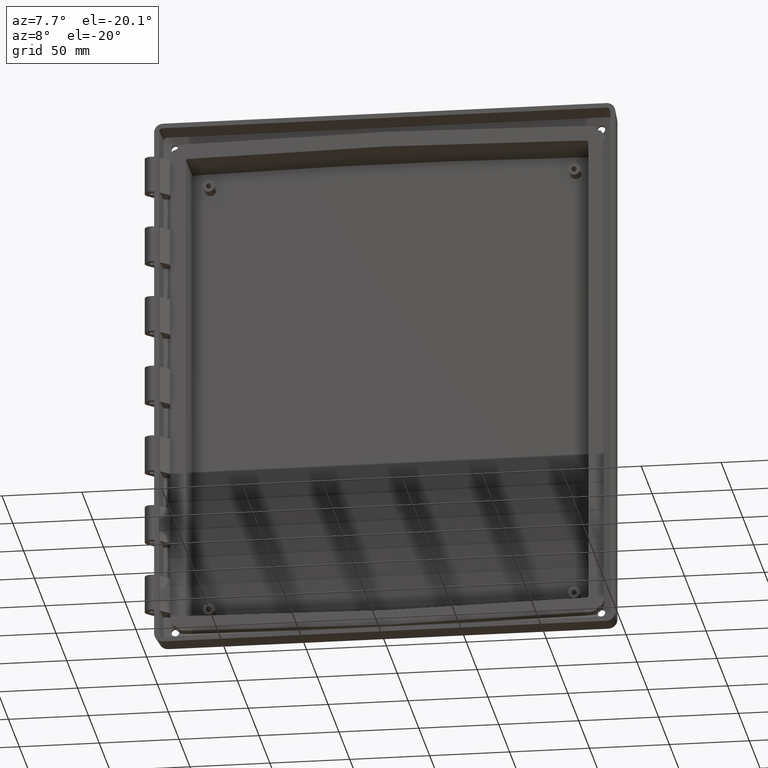
[diagram: clean part render]
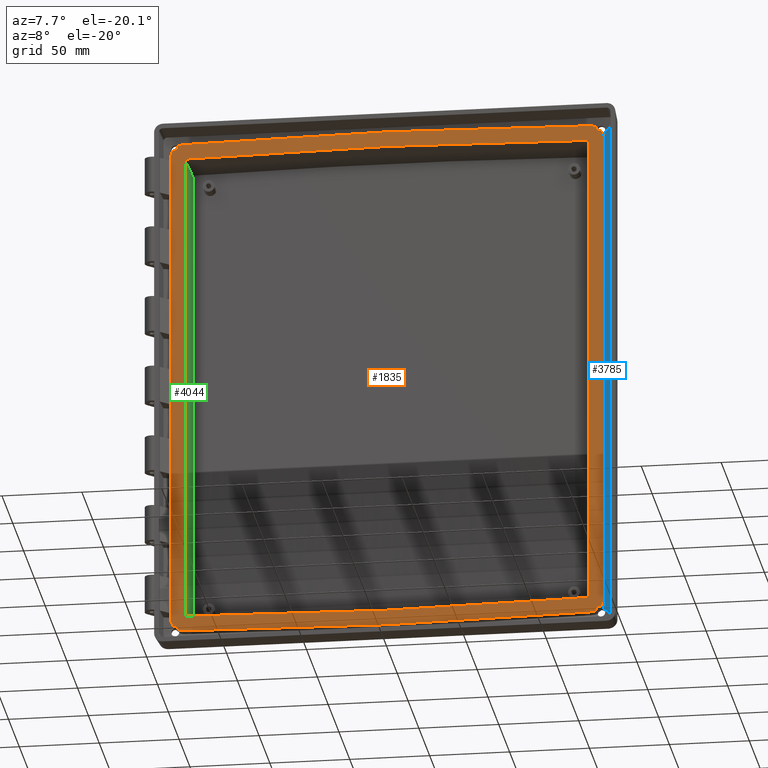
[diagram: same view with three faces highlighted in distinct colors, each labeled with its STEP entity id]
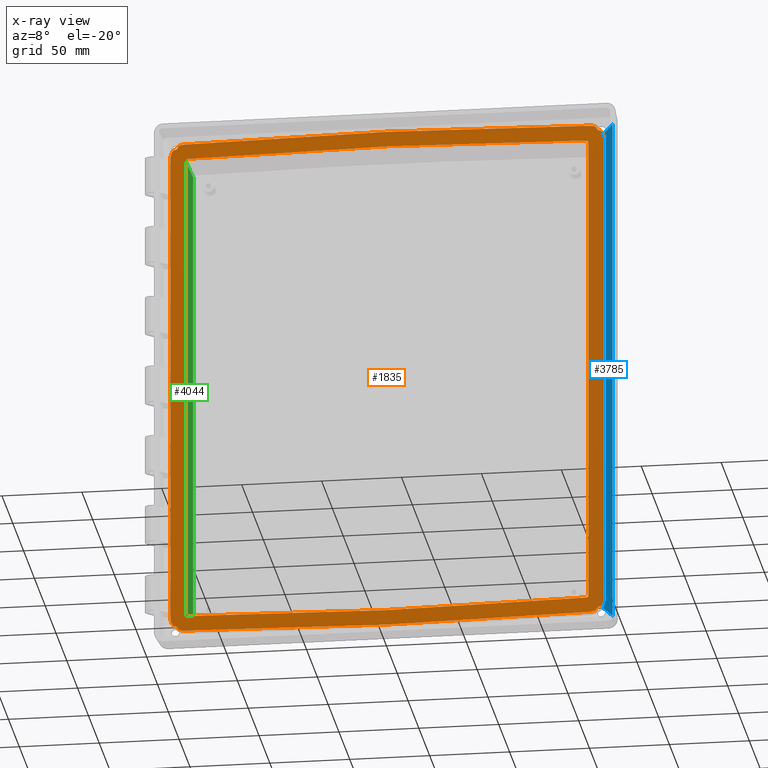
[diagram: x-ray of the same camera — body ghosted, the three highlighted faces saturated]
A machine part, auxiliary view with three faces highlighted in distinct colors.
The next image is the same camera in x-ray (body ghosted, the three faces saturated) — at least one of them is partly hidden behind the body in this view.
Their STEP definitions:

[orange] entity #1835 — the highlighted planar face has unit normal (0, -1, 0).
#88 = VERTEX_POINT ( 'NONE', #4485 ) ;
#89 = EDGE_CURVE ( 'NONE', #100, #88, #4479, .T. ) ;
#100 = VERTEX_POINT ( 'NONE', #4518 ) ;
#108 = VERTEX_POINT ( 'NONE', #4504 ) ;
#1166 = CARTESIAN_POINT ( 'NONE',  ( -135.5658622662900000, 3.000000000000001800, -34.49999999999999300 ) ) ;
#1168 = CARTESIAN_POINT ( 'NONE',  ( -126.9247106076668200, 3.000000000000000000, 160.4911357703596500 ) ) ;
#1235 = DIRECTION ( 'NONE',  ( -3.330669073875503700E-014, 0.0000000000000000000, -1.000000000000000000 ) ) ;
#1236 = DIRECTION ( 'NONE',  ( 0.0000000000000000000, 1.000000000000000000, 0.0000000000000000000 ) ) ;
#1237 = CARTESIAN_POINT ( 'NONE',  ( -133.2692622342644000, 2.999999999999999100, -159.5192622342643700 ) ) ;
#1238 = AXIS2_PLACEMENT_3D ( 'NONE', #1237, #1236, #1235 ) ;
#1239 = CIRCLE ( 'NONE', #1238, 2.499999999999974200 ) ;
#1249 = CARTESIAN_POINT ( 'NONE',  ( -132.5109024625724000, 2.999999999999999100, -157.1370593762610200 ) ) ;
#1503 = EDGE_CURVE ( 'NONE', #1504, #1505, #5092, .T. ) ;
#1504 = VERTEX_POINT ( 'NONE', #5087 ) ;
#1505 = VERTEX_POINT ( 'NONE', #5086 ) ;
#1518 = EDGE_CURVE ( 'NONE', #1505, #1519, #5116, .T. ) ;
#1519 = VERTEX_POINT ( 'NONE', #5112 ) ;
#1666 = EDGE_CURVE ( 'NONE', #1742, #1671, #5433, .T. ) ;
#1671 = VERTEX_POINT ( 'NONE', #5472 ) ;
#1677 = VERTEX_POINT ( 'NONE', #5460 ) ;
#1681 = EDGE_CURVE ( 'NONE', #1727, #1742, #5451, .T. ) ;
#1705 = VERTEX_POINT ( 'NONE', #5522 ) ;
#1707 = EDGE_CURVE ( 'NONE', #1781, #1705, #5520, .T. ) ;
#1712 = EDGE_CURVE ( 'NONE', #1735, #100, #5509, .T. ) ;
#1721 = VERTEX_POINT ( 'NONE', #5551 ) ;
#1727 = VERTEX_POINT ( 'NONE', #5534 ) ;
#1734 = EDGE_CURVE ( 'NONE', #1721, #1727, #5588, .T. ) ;
#1735 = VERTEX_POINT ( 'NONE', #5576 ) ;
#1737 = EDGE_CURVE ( 'NONE', #1671, #1735, #5575, .T. ) ;
#1742 = VERTEX_POINT ( 'NONE', #5613 ) ;
#1749 = EDGE_CURVE ( 'NONE', #1823, #1750, #5610, .T. ) ;
#1750 = VERTEX_POINT ( 'NONE', #5599 ) ;
#1764 = EDGE_CURVE ( 'NONE', #1812, #1765, #5632, .T. ) ;
#1765 = VERTEX_POINT ( 'NONE', #5617 ) ;
#1781 = VERTEX_POINT ( 'NONE', #5700 ) ;
#1787 = EDGE_CURVE ( 'NONE', #1788, #108, #5696, .T. ) ;
#1788 = VERTEX_POINT ( 'NONE', #5689 ) ;
#1799 = VERTEX_POINT ( 'NONE', #5711 ) ;
#1809 = VERTEX_POINT ( 'NONE', #5744 ) ;
#1811 = EDGE_CURVE ( 'NONE', #1809, #1812, #5743, .T. ) ;
#1812 = VERTEX_POINT ( 'NONE', #5738 ) ;
#1817 = EDGE_CURVE ( 'NONE', #9310, #1677, #5726, .T. ) ;
#1819 = EDGE_CURVE ( 'NONE', #1705, #1853, #5784, .T. ) ;
#1822 = EDGE_CURVE ( 'NONE', #1799, #1823, #5777, .T. ) ;
#1823 = VERTEX_POINT ( 'NONE', #5768 ) ;
#1827 = ORIENTED_EDGE ( 'NONE', *, *, #1828, .F. ) ;
#1828 = EDGE_CURVE ( 'NONE', #1900, #1888, #5757, .T. ) ;
#1829 = VERTEX_POINT ( 'NONE', #5812 ) ;
#1830 = EDGE_CURVE ( 'NONE', #1898, #1907, #5807, .T. ) ;
#1831 = ORIENTED_EDGE ( 'NONE', *, *, #1832, .T. ) ;
#1832 = EDGE_CURVE ( 'NONE', #1912, #1903, #5803, .T. ) ;
#1833 = ORIENTED_EDGE ( 'NONE', *, *, #1887, .T. ) ;
#1835 = ADVANCED_FACE ( 'NONE', ( #5799, #5798 ), #5797, .T. ) ;
#1836 = EDGE_LOOP ( 'NONE', ( #1896, #1886, #1889, #1908, #1910, #1831, #1833, #1827, #1884 ) ) ;
#1840 = EDGE_CURVE ( 'NONE', #1750, #1809, #5789, .T. ) ;
#1853 = VERTEX_POINT ( 'NONE', #5842 ) ;
#1859 = EDGE_CURVE ( 'NONE', #1677, #1781, #5836, .T. ) ;
#1866 = VERTEX_POINT ( 'NONE', #5860 ) ;
#1867 = VERTEX_POINT ( 'NONE', #5859 ) ;
#1868 = ORIENTED_EDGE ( 'NONE', *, *, #1869, .F. ) ;
#1869 = EDGE_CURVE ( 'NONE', #1944, #1504, #5858, .T. ) ;
#1870 = ORIENTED_EDGE ( 'NONE', *, *, #1681, .T. ) ;
#1871 = ORIENTED_EDGE ( 'NONE', *, *, #1872, .T. ) ;
#1872 = EDGE_CURVE ( 'NONE', #88, #1876, #5853, .T. ) ;
#1873 = ORIENTED_EDGE ( 'NONE', *, *, #1712, .T. ) ;
#1874 = ORIENTED_EDGE ( 'NONE', *, *, #89, .T. ) ;
#1875 = ORIENTED_EDGE ( 'NONE', *, *, #1734, .T. ) ;
#1876 = VERTEX_POINT ( 'NONE', #5852 ) ;
#1877 = EDGE_CURVE ( 'NONE', #1880, #1829, #5893, .T. ) ;
#1878 = ORIENTED_EDGE ( 'NONE', *, *, #1879, .T. ) ;
#1879 = EDGE_CURVE ( 'NONE', #1880, #1721, #5889, .T. ) ;
#1880 = VERTEX_POINT ( 'NONE', #5888 ) ;
#1881 = ORIENTED_EDGE ( 'NONE', *, *, #1666, .T. ) ;
#1882 = ORIENTED_EDGE ( 'NONE', *, *, #1737, .T. ) ;
#1883 = ORIENTED_EDGE ( 'NONE', *, *, #1877, .F. ) ;
#1884 = ORIENTED_EDGE ( 'NONE', *, *, #1885, .T. ) ;
#1885 = EDGE_CURVE ( 'NONE', #1900, #1904, #5887, .T. ) ;
#1886 = ORIENTED_EDGE ( 'NONE', *, *, #1895, .T. ) ;
#1887 = EDGE_CURVE ( 'NONE', #1903, #1888, #5879, .T. ) ;
#1888 = VERTEX_POINT ( 'NONE', #5916 ) ;
#1889 = ORIENTED_EDGE ( 'NONE', *, *, #1830, .T. ) ;
#1890 = VERTEX_POINT ( 'NONE', #5915 ) ;
#1891 = ORIENTED_EDGE ( 'NONE', *, *, #1707, .T. ) ;
#1892 = ORIENTED_EDGE ( 'NONE', *, *, #1819, .T. ) ;
#1893 = ORIENTED_EDGE ( 'NONE', *, *, #1894, .T. ) ;
#1894 = EDGE_CURVE ( 'NONE', #1853, #1906, #5914, .T. ) ;
#1895 = EDGE_CURVE ( 'NONE', #1890, #1898, #5909, .T. ) ;
#1896 = ORIENTED_EDGE ( 'NONE', *, *, #1905, .F. ) ;
#1897 = VERTEX_POINT ( 'NONE', #5905 ) ;
#1898 = VERTEX_POINT ( 'NONE', #5904 ) ;
#1899 = EDGE_LOOP ( 'NONE', ( #1891, #1892, #1893, #1901, #1883, #1878, #1875, #1870, #1881, #1882, #1873, #1874, #1871, #1949, #1933, #1927, #1928, #1868, #2001, #1958, #1996, #1998, #1946, #1942, #1999, #1929, #1930, #1931, #1932, #7324, #1913, #1916, #1919, #1922, #1925, #1953, #1956, #1936, #1939, #2004, #2021, #2028, #2044, #1965, #1975, #2023, #2026, #2047, #1988, #1989, #1990 ) ) ;
#1900 = VERTEX_POINT ( 'NONE', #5903 ) ;
#1901 = ORIENTED_EDGE ( 'NONE', *, *, #1902, .F. ) ;
#1902 = EDGE_CURVE ( 'NONE', #1829, #1906, #5902, .T. ) ;
#1903 = VERTEX_POINT ( 'NONE', #5898 ) ;
#1904 = VERTEX_POINT ( 'NONE', #5897 ) ;
#1905 = EDGE_CURVE ( 'NONE', #1890, #1904, #5934, .T. ) ;
#1906 = VERTEX_POINT ( 'NONE', #5935 ) ;
#1907 = VERTEX_POINT ( 'NONE', #5929 ) ;
#1908 = ORIENTED_EDGE ( 'NONE', *, *, #1909, .T. ) ;
#1909 = EDGE_CURVE ( 'NONE', #1907, #1897, #5928, .T. ) ;
#1910 = ORIENTED_EDGE ( 'NONE', *, *, #1911, .F. ) ;
#1911 = EDGE_CURVE ( 'NONE', #1912, #1897, #5924, .T. ) ;
#1912 = VERTEX_POINT ( 'NONE', #5923 ) ;
#1913 = ORIENTED_EDGE ( 'NONE', *, *, #1914, .T. ) ;
#1914 = EDGE_CURVE ( 'NONE', #1799, #1915, #5954, .T. ) ;
#1915 = VERTEX_POINT ( 'NONE', #5956 ) ;
#1916 = ORIENTED_EDGE ( 'NONE', *, *, #1917, .F. ) ;
#1917 = EDGE_CURVE ( 'NONE', #1918, #1915, #5955, .T. ) ;
#1918 = VERTEX_POINT ( 'NONE', #5946 ) ;
#1919 = ORIENTED_EDGE ( 'NONE', *, *, #1920, .F. ) ;
#1920 = EDGE_CURVE ( 'NONE', #1921, #1918, #5945, .T. ) ;
#1921 = VERTEX_POINT ( 'NONE', #5941 ) ;
#1922 = ORIENTED_EDGE ( 'NONE', *, *, #1923, .F. ) ;
#1923 = EDGE_CURVE ( 'NONE', #1924, #1921, #5940, .T. ) ;
#1924 = VERTEX_POINT ( 'NONE', #5936 ) ;
#1925 = ORIENTED_EDGE ( 'NONE', *, *, #1926, .F. ) ;
#1926 = EDGE_CURVE ( 'NONE', #1952, #1924, #5981, .T. ) ;
#1927 = ORIENTED_EDGE ( 'NONE', *, *, #1518, .F. ) ;
#1928 = ORIENTED_EDGE ( 'NONE', *, *, #1503, .F. ) ;
#1929 = ORIENTED_EDGE ( 'NONE', *, *, #1764, .F. ) ;
#1930 = ORIENTED_EDGE ( 'NONE', *, *, #1811, .F. ) ;
#1931 = ORIENTED_EDGE ( 'NONE', *, *, #1840, .F. ) ;
#1932 = ORIENTED_EDGE ( 'NONE', *, *, #1749, .F. ) ;
#1933 = ORIENTED_EDGE ( 'NONE', *, *, #1950, .T. ) ;
#1934 = VERTEX_POINT ( 'NONE', #5977 ) ;
#1935 = VERTEX_POINT ( 'NONE', #5976 ) ;
#1936 = ORIENTED_EDGE ( 'NONE', *, *, #1937, .F. ) ;
#1937 = EDGE_CURVE ( 'NONE', #1938, #1935, #5975, .T. ) ;
#1938 = VERTEX_POINT ( 'NONE', #5971 ) ;
#1939 = ORIENTED_EDGE ( 'NONE', *, *, #1940, .F. ) ;
#1940 = EDGE_CURVE ( 'NONE', #2003, #1938, #5970, .T. ) ;
#1941 = EDGE_CURVE ( 'NONE', #1951, #1866, #5966, .T. ) ;
#1942 = ORIENTED_EDGE ( 'NONE', *, *, #1943, .F. ) ;
#1943 = EDGE_CURVE ( 'NONE', #9196, #1951, #5962, .T. ) ;
#1944 = VERTEX_POINT ( 'NONE', #5958 ) ;
#1945 = EDGE_CURVE ( 'NONE', #1934, #1866, #5957, .T. ) ;
#1946 = ORIENTED_EDGE ( 'NONE', *, *, #1941, .F. ) ;
#1947 = EDGE_CURVE ( 'NONE', #1867, #1876, #5997, .T. ) ;
#1948 = VERTEX_POINT ( 'NONE', #5993 ) ;
#1949 = ORIENTED_EDGE ( 'NONE', *, *, #1947, .F. ) ;
#1950 = EDGE_CURVE ( 'NONE', #1867, #1519, #5991, .T. ) ;
#1951 = VERTEX_POINT ( 'NONE', #5992 ) ;
#1952 = VERTEX_POINT ( 'NONE', #5986 ) ;
#1953 = ORIENTED_EDGE ( 'NONE', *, *, #1954, .F. ) ;
#1954 = EDGE_CURVE ( 'NONE', #1955, #1952, #5985, .T. ) ;
#1955 = VERTEX_POINT ( 'NONE', #6032 ) ;
#1956 = ORIENTED_EDGE ( 'NONE', *, *, #1957, .F. ) ;
#1957 = EDGE_CURVE ( 'NONE', #1935, #1955, #6031, .T. ) ;
#1958 = ORIENTED_EDGE ( 'NONE', *, *, #1959, .F. ) ;
#1959 = EDGE_CURVE ( 'NONE', #1960, #1948, #6027, .T. ) ;
#1960 = VERTEX_POINT ( 'NONE', #6022 ) ;
#1964 = EDGE_CURVE ( 'NONE', #2045, #2029, #6016, .T. ) ;
#1965 = ORIENTED_EDGE ( 'NONE', *, *, #1966, .F. ) ;
#1966 = EDGE_CURVE ( 'NONE', #1967, #2045, #6012, .T. ) ;
#1967 = VERTEX_POINT ( 'NONE', #6008 ) ;
#1975 = ORIENTED_EDGE ( 'NONE', *, *, #1976, .F. ) ;
#1976 = EDGE_CURVE ( 'NONE', #1977, #1967, #6046, .T. ) ;
#1977 = VERTEX_POINT ( 'NONE', #6042 ) ;
#1988 = ORIENTED_EDGE ( 'NONE', *, *, #9313, .T. ) ;
#1989 = ORIENTED_EDGE ( 'NONE', *, *, #1817, .T. ) ;
#1990 = ORIENTED_EDGE ( 'NONE', *, *, #1859, .T. ) ;
#1995 = VERTEX_POINT ( 'NONE', #6056 ) ;
#1996 = ORIENTED_EDGE ( 'NONE', *, *, #1997, .F. ) ;
#1997 = EDGE_CURVE ( 'NONE', #1934, #1960, #6055, .T. ) ;
#1998 = ORIENTED_EDGE ( 'NONE', *, *, #1945, .T. ) ;
#1999 = ORIENTED_EDGE ( 'NONE', *, *, #2000, .T. ) ;
#2000 = EDGE_CURVE ( 'NONE', #9196, #1765, #6098, .T. ) ;
#2001 = ORIENTED_EDGE ( 'NONE', *, *, #2002, .F. ) ;
#2002 = EDGE_CURVE ( 'NONE', #1948, #1944, #6093, .T. ) ;
#2003 = VERTEX_POINT ( 'NONE', #6089 ) ;
#2004 = ORIENTED_EDGE ( 'NONE', *, *, #2005, .F. ) ;
#2005 = EDGE_CURVE ( 'NONE', #9264, #2003, #6088, .T. ) ;
#2021 = ORIENTED_EDGE ( 'NONE', *, *, #2027, .F. ) ;
#2022 = EDGE_CURVE ( 'NONE', #2029, #1995, #6134, .T. ) ;
#2023 = ORIENTED_EDGE ( 'NONE', *, *, #2024, .F. ) ;
#2024 = EDGE_CURVE ( 'NONE', #2025, #1977, #6130, .T. ) ;
#2025 = VERTEX_POINT ( 'NONE', #6126 ) ;
#2026 = ORIENTED_EDGE ( 'NONE', *, *, #2046, .T. ) ;
#2027 = EDGE_CURVE ( 'NONE', #1995, #9264, #6125, .T. ) ;
#2028 = ORIENTED_EDGE ( 'NONE', *, *, #2022, .F. ) ;
#2029 = VERTEX_POINT ( 'NONE', #6121 ) ;
#2044 = ORIENTED_EDGE ( 'NONE', *, *, #1964, .F. ) ;
#2045 = VERTEX_POINT ( 'NONE', #6159 ) ;
#2046 = EDGE_CURVE ( 'NONE', #2025, #1788, #6147, .T. ) ;
#2047 = ORIENTED_EDGE ( 'NONE', *, *, #1787, .T. ) ;
#4475 = DIRECTION ( 'NONE',  ( 0.0000000000000000000, 0.0000000000000000000, -1.000000000000000000 ) ) ;
#4476 = DIRECTION ( 'NONE',  ( 0.0000000000000000000, 1.000000000000000000, 0.0000000000000000000 ) ) ;
#4477 = CARTESIAN_POINT ( 'NONE',  ( 133.2692622342644000, 2.999999999999999100, -159.5192622342643700 ) ) ;
#4478 = AXIS2_PLACEMENT_3D ( 'NONE', #4477, #4476, #4475 ) ;
#4479 = CIRCLE ( 'NONE', #4478, 2.500000000000002200 ) ;
#4485 = CARTESIAN_POINT ( 'NONE',  ( 133.7400483444193400, 2.999999999999999600, -157.0639902659306700 ) ) ;
#4504 = CARTESIAN_POINT ( 'NONE',  ( -133.2692622342644000, 2.999999999999999100, -157.0192622342644000 ) ) ;
#4518 = CARTESIAN_POINT ( 'NONE',  ( 133.2692622342644000, 2.999999999999999100, -157.0192622342643700 ) ) ;
#5086 = CARTESIAN_POINT ( 'NONE',  ( 133.2692622342644000, 2.999999999999999100, 157.0192622342643700 ) ) ;
#5087 = CARTESIAN_POINT ( 'NONE',  ( 132.5109024625724000, 2.999999999999999100, 157.1370593762610500 ) ) ;
#5088 = DIRECTION ( 'NONE',  ( 0.0000000000000000000, 0.0000000000000000000, -1.000000000000000000 ) ) ;
#5089 = DIRECTION ( 'NONE',  ( 0.0000000000000000000, -1.000000000000000000, 0.0000000000000000000 ) ) ;
#5090 = CARTESIAN_POINT ( 'NONE',  ( 133.2692622342644000, 2.999999999999999100, 159.5192622342643700 ) ) ;
#5091 = AXIS2_PLACEMENT_3D ( 'NONE', #5090, #5089, #5088 ) ;
#5092 = CIRCLE ( 'NONE', #5091, 2.500000000000002200 ) ;
#5112 = CARTESIAN_POINT ( 'NONE',  ( 133.7400483444193400, 2.999999999999999600, 157.0639902659306700 ) ) ;
#5113 = DIRECTION ( 'NONE',  ( 0.0000000000000000000, 0.0000000000000000000, -1.000000000000000000 ) ) ;
#5114 = DIRECTION ( 'NONE',  ( 0.0000000000000000000, -1.000000000000000000, 0.0000000000000000000 ) ) ;
#5115 = AXIS2_PLACEMENT_3D ( 'NONE', #5122, #5114, #5113 ) ;
#5116 = CIRCLE ( 'NONE', #5115, 2.500000000000002200 ) ;
#5122 = CARTESIAN_POINT ( 'NONE',  ( 133.2692622342644000, 2.999999999999999100, 159.5192622342643700 ) ) ;
#5430 = DIRECTION ( 'NONE',  ( 0.8191520442889900200, 0.0000000000000000000, 0.5735764363510486000 ) ) ;
#5431 = VECTOR ( 'NONE', #5430, 1000.000000000000000 ) ;
#5432 = CARTESIAN_POINT ( 'NONE',  ( 131.1127701035499600, 3.000000000000000000, -158.0993952672530700 ) ) ;
#5433 = LINE ( 'NONE', #5432, #5431 ) ;
#5448 = DIRECTION ( 'NONE',  ( -3.700743415417253800E-013, 0.0000000000000000000, -1.000000000000000000 ) ) ;
#5449 = DIRECTION ( 'NONE',  ( 0.0000000000000000000, 1.000000000000000000, 0.0000000000000000000 ) ) ;
#5450 = AXIS2_PLACEMENT_3D ( 'NONE', #5458, #5449, #5448 ) ;
#5451 = CIRCLE ( 'NONE', #5450, 0.2999999999999947200 ) ;
#5458 = CARTESIAN_POINT ( 'NONE',  ( 131.5275978006791000, 2.999999999999999100, -158.1751621632934600 ) ) ;
#5460 = CARTESIAN_POINT ( 'NONE',  ( -132.4298327042701000, 2.999999999999999100, -157.1771781059347000 ) ) ;
#5472 = CARTESIAN_POINT ( 'NONE',  ( 132.4298327042701000, 2.999999999999999100, -157.1771781059347300 ) ) ;
#5506 = DIRECTION ( 'NONE',  ( 0.0000000000000000000, 0.0000000000000000000, -1.000000000000000000 ) ) ;
#5507 = DIRECTION ( 'NONE',  ( 0.0000000000000000000, 1.000000000000000000, 0.0000000000000000000 ) ) ;
#5508 = AXIS2_PLACEMENT_3D ( 'NONE', #5514, #5507, #5506 ) ;
#5509 = CIRCLE ( 'NONE', #5508, 2.500000000000002200 ) ;
#5514 = CARTESIAN_POINT ( 'NONE',  ( 133.2692622342644000, 2.999999999999999100, -159.5192622342643700 ) ) ;
#5516 = DIRECTION ( 'NONE',  ( 0.0000000000000000000, 0.0000000000000000000, -1.000000000000000000 ) ) ;
#5517 = DIRECTION ( 'NONE',  ( 0.0000000000000000000, 1.000000000000000000, 0.0000000000000000000 ) ) ;
#5518 = CARTESIAN_POINT ( 'NONE',  ( -131.5275978006791000, 2.999999999999999100, -158.1751621632934600 ) ) ;
#5519 = AXIS2_PLACEMENT_3D ( 'NONE', #5518, #5517, #5516 ) ;
#5520 = CIRCLE ( 'NONE', #5519, 0.2999999999999947200 ) ;
#5522 = CARTESIAN_POINT ( 'NONE',  ( -131.2900981051902200, 2.999999999999999100, -157.9918757899792500 ) ) ;
#5534 = CARTESIAN_POINT ( 'NONE',  ( 131.2900981051902500, 2.999999999999999100, -157.9918757899792200 ) ) ;
#5551 = CARTESIAN_POINT ( 'NONE',  ( 130.7692937894356900, 3.000000000000000000, -159.5318230805983400 ) ) ;
#5571 = DIRECTION ( 'NONE',  ( -4.625929269271566700E-013, 0.0000000000000000000, -1.000000000000000000 ) ) ;
#5572 = DIRECTION ( 'NONE',  ( 0.0000000000000000000, 1.000000000000000000, 0.0000000000000000000 ) ) ;
#5573 = CARTESIAN_POINT ( 'NONE',  ( 132.6019056351754300, 2.999999999999999100, -157.4229237192214400 ) ) ;
#5574 = AXIS2_PLACEMENT_3D ( 'NONE', #5573, #5572, #5571 ) ;
#5575 = CIRCLE ( 'NONE', #5574, 0.2999999999999947200 ) ;
#5576 = CARTESIAN_POINT ( 'NONE',  ( 132.5109024625724000, 2.999999999999999100, -157.1370593762610500 ) ) ;
#5577 = DIRECTION ( 'NONE',  ( 0.0000000000000000000, 0.0000000000000000000, -1.000000000000000000 ) ) ;
#5578 = DIRECTION ( 'NONE',  ( 0.0000000000000000000, 1.000000000000000000, 0.0000000000000000000 ) ) ;
#5579 = AXIS2_PLACEMENT_3D ( 'NONE', #5589, #5578, #5577 ) ;
#5588 = CIRCLE ( 'NONE', #5579, 2.500000000000002200 ) ;
#5589 = CARTESIAN_POINT ( 'NONE',  ( 133.2692622342644000, 2.999999999999999100, -159.5192622342643700 ) ) ;
#5599 = CARTESIAN_POINT ( 'NONE',  ( -132.4298327042701000, 2.999999999999999100, 157.1771781059347000 ) ) ;
#5600 = DIRECTION ( 'NONE',  ( 0.0000000000000000000, 0.0000000000000000000, -1.000000000000000000 ) ) ;
#5601 = DIRECTION ( 'NONE',  ( 0.0000000000000000000, -1.000000000000000000, 0.0000000000000000000 ) ) ;
#5602 = CARTESIAN_POINT ( 'NONE',  ( -132.6019056351754300, 2.999999999999999100, 157.4229237192214400 ) ) ;
#5603 = AXIS2_PLACEMENT_3D ( 'NONE', #5602, #5601, #5600 ) ;
#5610 = CIRCLE ( 'NONE', #5603, 0.3000000000000224700 ) ;
#5613 = CARTESIAN_POINT ( 'NONE',  ( 131.3555248697738300, 2.999999999999999100, -157.9294165500067800 ) ) ;
#5617 = CARTESIAN_POINT ( 'NONE',  ( -130.7692937894356900, 2.999999999999999100, 159.5318230805982900 ) ) ;
#5618 = DIRECTION ( 'NONE',  ( 0.0000000000000000000, 0.0000000000000000000, -1.000000000000000000 ) ) ;
#5619 = DIRECTION ( 'NONE',  ( 0.0000000000000000000, -1.000000000000000000, 0.0000000000000000000 ) ) ;
#5620 = CARTESIAN_POINT ( 'NONE',  ( -133.2692622342644000, 2.999999999999999100, 159.5192622342643700 ) ) ;
#5621 = AXIS2_PLACEMENT_3D ( 'NONE', #5620, #5619, #5618 ) ;
#5632 = CIRCLE ( 'NONE', #5621, 2.499999999999974200 ) ;
#5685 = DIRECTION ( 'NONE',  ( 0.0000000000000000000, 0.0000000000000000000, -1.000000000000000000 ) ) ;
#5686 = DIRECTION ( 'NONE',  ( 0.0000000000000000000, 1.000000000000000000, 0.0000000000000000000 ) ) ;
#5687 = CARTESIAN_POINT ( 'NONE',  ( -133.2692622342644000, 2.999999999999999100, -159.5192622342643700 ) ) ;
#5688 = AXIS2_PLACEMENT_3D ( 'NONE', #5687, #5686, #5685 ) ;
#5689 = CARTESIAN_POINT ( 'NONE',  ( -133.7400483444193600, 2.999999999999998200, -157.0639902659307000 ) ) ;
#5696 = CIRCLE ( 'NONE', #5688, 2.499999999999974200 ) ;
#5700 = CARTESIAN_POINT ( 'NONE',  ( -131.3555248697737700, 2.999999999999999100, -157.9294165500067800 ) ) ;
#5711 = CARTESIAN_POINT ( 'NONE',  ( -133.7400483444193100, 3.000000000000000400, 157.0639902659306700 ) ) ;
#5723 = DIRECTION ( 'NONE',  ( 2.775557561562683300E-013, 0.0000000000000000000, -1.000000000000000000 ) ) ;
#5724 = DIRECTION ( 'NONE',  ( 0.0000000000000000000, 1.000000000000000000, 0.0000000000000000000 ) ) ;
#5725 = AXIS2_PLACEMENT_3D ( 'NONE', #5732, #5724, #5723 ) ;
#5726 = CIRCLE ( 'NONE', #5725, 0.3000000000000224700 ) ;
#5732 = CARTESIAN_POINT ( 'NONE',  ( -132.6019056351754300, 2.999999999999999100, -157.4229237192214400 ) ) ;
#5738 = CARTESIAN_POINT ( 'NONE',  ( -131.2900981051902200, 2.999999999999999100, 157.9918757899792500 ) ) ;
#5739 = DIRECTION ( 'NONE',  ( 0.0000000000000000000, 0.0000000000000000000, -1.000000000000000000 ) ) ;
#5740 = DIRECTION ( 'NONE',  ( 0.0000000000000000000, -1.000000000000000000, 0.0000000000000000000 ) ) ;
#5741 = CARTESIAN_POINT ( 'NONE',  ( -131.5275978006791000, 2.999999999999999100, 158.1751621632934600 ) ) ;
#5742 = AXIS2_PLACEMENT_3D ( 'NONE', #5741, #5740, #5739 ) ;
#5743 = CIRCLE ( 'NONE', #5742, 0.2999999999999947200 ) ;
#5744 = CARTESIAN_POINT ( 'NONE',  ( -131.3555248697737700, 2.999999999999999100, 157.9294165500067800 ) ) ;
#5757 =( BOUNDED_CURVE ( )  B_SPLINE_CURVE ( 3, ( #5811, #5810, #5809, #5808 ),
 .UNSPECIFIED., .F., .T. ) 
 B_SPLINE_CURVE_WITH_KNOTS ( ( 4, 4 ),
 ( 5.507112246722123000, 7.059258367636923400 ),
 .UNSPECIFIED. ) 
 CURVE ( )  GEOMETRIC_REPRESENTATION_ITEM ( )  RATIONAL_B_SPLINE_CURVE ( ( 1.000000000000000000, 0.8091131901566855900, 0.8091131901566855900, 1.000000000000000000 ) ) 
 REPRESENTATION_ITEM ( '' )  );
#5768 = CARTESIAN_POINT ( 'NONE',  ( -132.5109024625724000, 2.999999999999999100, 157.1370593762610200 ) ) ;
#5769 = DIRECTION ( 'NONE',  ( 0.0000000000000000000, 0.0000000000000000000, -1.000000000000000000 ) ) ;
#5770 = DIRECTION ( 'NONE',  ( 0.0000000000000000000, -1.000000000000000000, 0.0000000000000000000 ) ) ;
#5771 = CARTESIAN_POINT ( 'NONE',  ( -133.2692622342644000, 2.999999999999999100, 159.5192622342643700 ) ) ;
#5772 = AXIS2_PLACEMENT_3D ( 'NONE', #5771, #5770, #5769 ) ;
#5777 = CIRCLE ( 'NONE', #5772, 2.499999999999974200 ) ;
#5780 = DIRECTION ( 'NONE',  ( 0.0000000000000000000, 0.0000000000000000000, -1.000000000000000000 ) ) ;
#5781 = DIRECTION ( 'NONE',  ( 0.0000000000000000000, 1.000000000000000000, 0.0000000000000000000 ) ) ;
#5782 = CARTESIAN_POINT ( 'NONE',  ( -133.2692622342644000, 2.999999999999999100, -159.5192622342643700 ) ) ;
#5783 = AXIS2_PLACEMENT_3D ( 'NONE', #5782, #5781, #5780 ) ;
#5784 = CIRCLE ( 'NONE', #5783, 2.499999999999974200 ) ;
#5789 = LINE ( 'NONE', #5826, #5825 ) ;
#5793 = DIRECTION ( 'NONE',  ( 0.0000000000000000000, 0.0000000000000000000, -1.000000000000000000 ) ) ;
#5794 = DIRECTION ( 'NONE',  ( 0.0000000000000000000, -1.000000000000000000, 0.0000000000000000000 ) ) ;
#5795 = CARTESIAN_POINT ( 'NONE',  ( 137.0610999578146900, 3.000000000000000000, -166.5944906920658200 ) ) ;
#5796 = AXIS2_PLACEMENT_3D ( 'NONE', #5795, #5794, #5793 ) ;
#5797 = PLANE ( 'NONE',  #5796 ) ;
#5798 = FACE_OUTER_BOUND ( 'NONE', #1899, .T. ) ;
#5799 = FACE_BOUND ( 'NONE', #1836, .T. ) ;
#5800 = DIRECTION ( 'NONE',  ( 0.9998476951563911600, 0.0000000000000000000, 0.01745240643728375100 ) ) ;
#5801 = VECTOR ( 'NONE', #5800, 1000.000000000000100 ) ;
#5802 = CARTESIAN_POINT ( 'NONE',  ( -126.0592716034279200, 3.000000000000000000, 150.8952536473317400 ) ) ;
#5803 = LINE ( 'NONE', #5802, #5801 ) ;
#5804 = DIRECTION ( 'NONE',  ( -0.9998476951563911600, 0.0000000000000000000, 0.01745240643728375100 ) ) ;
#5805 = VECTOR ( 'NONE', #5804, 1000.000000000000100 ) ;
#5806 = CARTESIAN_POINT ( 'NONE',  ( -126.0592716034279200, 3.000000000000000000, -150.8952536473317400 ) ) ;
#5807 = LINE ( 'NONE', #5806, #5805 ) ;
#5808 = CARTESIAN_POINT ( 'NONE',  ( 124.4834140711650700, 3.000000000000000000, 150.9227603428750800 ) ) ;
#5809 = CARTESIAN_POINT ( 'NONE',  ( 125.3495319118591600, 3.000000000000000000, 150.9076421997302800 ) ) ;
#5810 = CARTESIAN_POINT ( 'NONE',  ( 125.9563376493395300, 3.000000000000000000, 150.2901521951722500 ) ) ;
#5811 = CARTESIAN_POINT ( 'NONE',  ( 125.9563376493394500, 3.000000000000000000, 149.4239024204417200 ) ) ;
#5812 = CARTESIAN_POINT ( 'NONE',  ( 2.801307363159422100E-014, 3.000000000000000400, -162.7066148350116900 ) ) ;
#5824 = DIRECTION ( 'NONE',  ( 0.8191520442889871400, 0.0000000000000000000, 0.5735764363510528200 ) ) ;
#5825 = VECTOR ( 'NONE', #5824, 1000.000000000000000 ) ;
#5826 = CARTESIAN_POINT ( 'NONE',  ( -103.7216266607136100, 3.000000000000000000, 177.2788803861108700 ) ) ;
#5833 = DIRECTION ( 'NONE',  ( 0.8191520442889871400, 0.0000000000000000000, -0.5735764363510528200 ) ) ;
#5834 = VECTOR ( 'NONE', #5833, 1000.000000000000000 ) ;
#5835 = CARTESIAN_POINT ( 'NONE',  ( 52.82598690620827900, 3.000000000000000000, -286.8946994944120700 ) ) ;
#5836 = LINE ( 'NONE', #5835, #5834 ) ;
#5842 = CARTESIAN_POINT ( 'NONE',  ( -130.7692937894356900, 2.999999999999998700, -159.5318230805983400 ) ) ;
#5851 = CARTESIAN_POINT ( 'NONE',  ( 133.7400483444193400, 2.999999999999999600, -157.0639902659306700 ) ) ;
#5852 = CARTESIAN_POINT ( 'NONE',  ( 135.5658622662899400, 3.000000000000000000, -151.6978359587514500 ) ) ;
#5853 =( BOUNDED_CURVE ( )  B_SPLINE_CURVE ( 3, ( #5851, #5896, #5895, #5894 ),
 .UNSPECIFIED., .F., .F. ) 
 B_SPLINE_CURVE_WITH_KNOTS ( ( 4, 4 ),
 ( 3.262008708152234900, 3.917665714047149400 ),
 .UNSPECIFIED. ) 
 CURVE ( )  GEOMETRIC_REPRESENTATION_ITEM ( )  RATIONAL_B_SPLINE_CURVE ( ( 1.000000000000000000, 0.9644958473156946000, 0.9644958473156946000, 1.000000000000000000 ) ) 
 REPRESENTATION_ITEM ( '' )  );
#5854 = DIRECTION ( 'NONE',  ( 0.0000000000000000000, 0.0000000000000000000, -1.000000000000000000 ) ) ;
#5855 = DIRECTION ( 'NONE',  ( 0.0000000000000000000, -1.000000000000000000, 0.0000000000000000000 ) ) ;
#5856 = CARTESIAN_POINT ( 'NONE',  ( 132.6019056351754300, 2.999999999999999100, 157.4229237192214400 ) ) ;
#5857 = AXIS2_PLACEMENT_3D ( 'NONE', #5856, #5855, #5854 ) ;
#5858 = CIRCLE ( 'NONE', #5857, 0.2999999999999947200 ) ;
#5859 = CARTESIAN_POINT ( 'NONE',  ( 135.5658622662899400, 3.000000000000000000, 151.6978359587513400 ) ) ;
#5860 = CARTESIAN_POINT ( 'NONE',  ( 126.9247106076668200, 3.000000000000000000, 160.4911357703597000 ) ) ;
#5878 = CARTESIAN_POINT ( 'NONE',  ( -0.001828354386817996600, 3.000000000000000000, 153.0956583320179600 ) ) ;
#5879 = LINE ( 'NONE', #5878, #5918 ) ;
#5880 = DIRECTION ( 'NONE',  ( 0.0000000000000000000, 0.0000000000000000000, -1.000000000000000000 ) ) ;
#5881 = VECTOR ( 'NONE', #5880, 1000.000000000000000 ) ;
#5882 = CARTESIAN_POINT ( 'NONE',  ( 125.9563376493394500, 3.000000000000000000, -151.0000000000000600 ) ) ;
#5883 = CARTESIAN_POINT ( 'NONE',  ( 130.7692937894356900, 3.000000000000000000, -159.5318230805983400 ) ) ;
#5884 = CARTESIAN_POINT ( 'NONE',  ( 129.5724915749522700, 3.000000000000000400, -160.1423414401538700 ) ) ;
#5885 = CARTESIAN_POINT ( 'NONE',  ( 128.2686626616549900, 3.000000000000000400, -160.4676769999968800 ) ) ;
#5886 = CARTESIAN_POINT ( 'NONE',  ( 126.9247106076668200, 3.000000000000000000, -160.4911357703597000 ) ) ;
#5887 = LINE ( 'NONE', #5882, #5881 ) ;
#5888 = CARTESIAN_POINT ( 'NONE',  ( 126.9247106076668200, 3.000000000000000000, -160.4911357703597000 ) ) ;
#5889 =( BOUNDED_CURVE ( )  B_SPLINE_CURVE ( 3, ( #5886, #5885, #5884, #5883 ),
 .UNSPECIFIED., .F., .T. ) 
 B_SPLINE_CURVE_WITH_KNOTS ( ( 4, 4 ),
 ( 2.365519593132439500, 2.819541951839394900 ),
 .UNSPECIFIED. ) 
 CURVE ( )  GEOMETRIC_REPRESENTATION_ITEM ( )  RATIONAL_B_SPLINE_CURVE ( ( 1.000000000000000000, 0.9828956193457909500, 0.9828956193457909500, 1.000000000000000000 ) ) 
 REPRESENTATION_ITEM ( '' )  );
#5890 = DIRECTION ( 'NONE',  ( -0.9998476951563911600, 0.0000000000000000000, -0.01745240643728331400 ) ) ;
#5891 = VECTOR ( 'NONE', #5890, 1000.000000000000100 ) ;
#5892 = CARTESIAN_POINT ( 'NONE',  ( 0.1658809748972811500, 3.000000000000000000, -162.7037193718245500 ) ) ;
#5893 = LINE ( 'NONE', #5892, #5891 ) ;
#5894 = CARTESIAN_POINT ( 'NONE',  ( 135.5658622662899400, 3.000000000000000000, -151.6978359587514500 ) ) ;
#5895 = CARTESIAN_POINT ( 'NONE',  ( 135.5658622662899400, 3.000000000000000400, -153.6575193423267900 ) ) ;
#5896 = CARTESIAN_POINT ( 'NONE',  ( 134.9348542196328800, 3.000000000000000400, -155.5120821249155400 ) ) ;
#5897 = CARTESIAN_POINT ( 'NONE',  ( 125.9563376493394500, 3.000000000000000000, -149.4239024204418600 ) ) ;
#5898 = CARTESIAN_POINT ( 'NONE',  ( 0.0000000000000000000, 3.000000000000000000, 153.0956264179734200 ) ) ;
#5899 = DIRECTION ( 'NONE',  ( -0.9998476951563911600, 0.0000000000000000000, 0.01745240643728375100 ) ) ;
#5900 = VECTOR ( 'NONE', #5899, 1000.000000000000100 ) ;
#5901 = CARTESIAN_POINT ( 'NONE',  ( -126.2269809327120100, 3.000000000000000000, -160.5033146871383300 ) ) ;
#5902 = LINE ( 'NONE', #5901, #5900 ) ;
#5903 = CARTESIAN_POINT ( 'NONE',  ( 125.9563376493394500, 3.000000000000000000, 149.4239024204417200 ) ) ;
#5904 = CARTESIAN_POINT ( 'NONE',  ( 4.235164736271501700E-019, 3.000000000000000000, -153.0956264179734200 ) ) ;
#5905 = CARTESIAN_POINT ( 'NONE',  ( -125.9563376493394700, 3.000000000000000000, 149.4239024204417800 ) ) ;
#5906 = DIRECTION ( 'NONE',  ( -0.9998476951563911600, 0.0000000000000000000, -0.01745240643728331400 ) ) ;
#5907 = VECTOR ( 'NONE', #5906, 1000.000000000000100 ) ;
#5908 = CARTESIAN_POINT ( 'NONE',  ( -0.001828354386817996600, 3.000000000000000000, -153.0956583320179600 ) ) ;
#5909 = LINE ( 'NONE', #5908, #5907 ) ;
#5910 = CARTESIAN_POINT ( 'NONE',  ( -126.9247106076668200, 3.000000000000000000, -160.4911357703596500 ) ) ;
#5911 = CARTESIAN_POINT ( 'NONE',  ( -128.2686626616549900, 2.999999999999999100, -160.4676769999968800 ) ) ;
#5912 = CARTESIAN_POINT ( 'NONE',  ( -129.5724915749522700, 2.999999999999999100, -160.1423414401538700 ) ) ;
#5913 = CARTESIAN_POINT ( 'NONE',  ( -130.7692937894356900, 2.999999999999998700, -159.5318230805983400 ) ) ;
#5914 =( BOUNDED_CURVE ( )  B_SPLINE_CURVE ( 3, ( #5913, #5912, #5911, #5910 ),
 .UNSPECIFIED., .F., .T. ) 
 B_SPLINE_CURVE_WITH_KNOTS ( ( 4, 4 ),
 ( 3.463643355340194000, 3.917665714047149800 ),
 .UNSPECIFIED. ) 
 CURVE ( )  GEOMETRIC_REPRESENTATION_ITEM ( )  RATIONAL_B_SPLINE_CURVE ( ( 1.000000000000000000, 0.9828956193457909500, 0.9828956193457909500, 1.000000000000000000 ) ) 
 REPRESENTATION_ITEM ( '' )  );
#5915 = CARTESIAN_POINT ( 'NONE',  ( 124.4834140711650700, 3.000000000000000000, -150.9227603428750800 ) ) ;
#5916 = CARTESIAN_POINT ( 'NONE',  ( 124.4834140711650700, 3.000000000000000000, 150.9227603428750800 ) ) ;
#5917 = DIRECTION ( 'NONE',  ( 0.9998476951563911600, 0.0000000000000000000, -0.01745240643728331400 ) ) ;
#5918 = VECTOR ( 'NONE', #5917, 1000.000000000000100 ) ;
#5919 = CARTESIAN_POINT ( 'NONE',  ( -125.9563376493394700, 3.000000000000000000, 149.4239024204417800 ) ) ;
#5920 = CARTESIAN_POINT ( 'NONE',  ( -125.9563376493394900, 3.000000000000000000, 150.2901521951722500 ) ) ;
#5921 = CARTESIAN_POINT ( 'NONE',  ( -125.3495319118591300, 3.000000000000000000, 150.9076421997302200 ) ) ;
#5922 = CARTESIAN_POINT ( 'NONE',  ( -124.4834140711651000, 3.000000000000000000, 150.9227603428750200 ) ) ;
#5923 = CARTESIAN_POINT ( 'NONE',  ( -124.4834140711651000, 3.000000000000000000, 150.9227603428750200 ) ) ;
#5924 =( BOUNDED_CURVE ( )  B_SPLINE_CURVE ( 3, ( #5922, #5921, #5920, #5919 ),
 .UNSPECIFIED., .F., .T. ) 
 B_SPLINE_CURVE_WITH_KNOTS ( ( 4, 4 ),
 ( 5.507112246722248200, 7.059258367636957100 ),
 .UNSPECIFIED. ) 
 CURVE ( )  GEOMETRIC_REPRESENTATION_ITEM ( )  RATIONAL_B_SPLINE_CURVE ( ( 1.000000000000000000, 0.8091131901567069100, 0.8091131901567069100, 1.000000000000000000 ) ) 
 REPRESENTATION_ITEM ( '' )  );
#5925 = DIRECTION ( 'NONE',  ( 0.0000000000000000000, 0.0000000000000000000, 1.000000000000000000 ) ) ;
#5926 = VECTOR ( 'NONE', #5925, 1000.000000000000000 ) ;
#5927 = CARTESIAN_POINT ( 'NONE',  ( -125.9563376493394700, 3.000000000000000000, 151.0000000000000000 ) ) ;
#5928 = LINE ( 'NONE', #5927, #5926 ) ;
#5929 = CARTESIAN_POINT ( 'NONE',  ( -125.9563376493394700, 3.000000000000000900, -150.8970503661836600 ) ) ;
#5930 = CARTESIAN_POINT ( 'NONE',  ( 125.9563376493394500, 3.000000000000000000, -149.4239024204418600 ) ) ;
#5931 = CARTESIAN_POINT ( 'NONE',  ( 125.9563376493394700, 3.000000000000000000, -150.2901521951723700 ) ) ;
#5932 = CARTESIAN_POINT ( 'NONE',  ( 125.3495319118590700, 3.000000000000000000, -150.9076421997302800 ) ) ;
#5933 = CARTESIAN_POINT ( 'NONE',  ( 124.4834140711650700, 3.000000000000000000, -150.9227603428750800 ) ) ;
#5934 =( BOUNDED_CURVE ( )  B_SPLINE_CURVE ( 3, ( #5933, #5932, #5931, #5930 ),
 .UNSPECIFIED., .F., .T. ) 
 B_SPLINE_CURVE_WITH_KNOTS ( ( 4, 4 ),
 ( 2.365519593132456000, 3.917665714047145400 ),
 .UNSPECIFIED. ) 
 CURVE ( )  GEOMETRIC_REPRESENTATION_ITEM ( )  RATIONAL_B_SPLINE_CURVE ( ( 1.000000000000000000, 0.8091131901567116800, 0.8091131901567116800, 1.000000000000000000 ) ) 
 REPRESENTATION_ITEM ( '' )  );
#5935 = CARTESIAN_POINT ( 'NONE',  ( -126.9247106076668200, 3.000000000000000000, -160.4911357703596500 ) ) ;
#5936 = CARTESIAN_POINT ( 'NONE',  ( -135.5658622662899100, 3.000000000000000900, 103.5000000000000100 ) ) ;
#5937 = DIRECTION ( 'NONE',  ( 0.0000000000000000000, 0.0000000000000000000, 1.000000000000000000 ) ) ;
#5938 = VECTOR ( 'NONE', #5937, 1000.000000000000000 ) ;
#5939 = CARTESIAN_POINT ( 'NONE',  ( -135.5658622662899700, 3.000000000000000000, 151.0000000000000000 ) ) ;
#5940 = LINE ( 'NONE', #5939, #5938 ) ;
#5941 = CARTESIAN_POINT ( 'NONE',  ( -135.5658622662899700, 3.000000000000000000, 126.4999999999999700 ) ) ;
#5942 = DIRECTION ( 'NONE',  ( 0.0000000000000000000, 0.0000000000000000000, 1.000000000000000000 ) ) ;
#5943 = VECTOR ( 'NONE', #5942, 1000.000000000000000 ) ;
#5944 = CARTESIAN_POINT ( 'NONE',  ( -135.5658622662899700, 3.000000000000000000, 151.0000000000000000 ) ) ;
#5945 = LINE ( 'NONE', #5944, #5943 ) ;
#5946 = CARTESIAN_POINT ( 'NONE',  ( -135.5658622662898800, 3.000000000000001800, 149.5000000000000000 ) ) ;
#5947 = DIRECTION ( 'NONE',  ( 0.0000000000000000000, 0.0000000000000000000, 1.000000000000000000 ) ) ;
#5948 = VECTOR ( 'NONE', #5947, 1000.000000000000000 ) ;
#5949 = CARTESIAN_POINT ( 'NONE',  ( -135.5658622662899700, 3.000000000000000000, 151.0000000000000000 ) ) ;
#5950 = CARTESIAN_POINT ( 'NONE',  ( -135.5658622662899700, 3.000000000000000000, 151.6978359587513700 ) ) ;
#5951 = CARTESIAN_POINT ( 'NONE',  ( -135.5658622662899700, 3.000000000000000000, 153.6575193423267600 ) ) ;
#5952 = CARTESIAN_POINT ( 'NONE',  ( -134.9348542196328500, 3.000000000000000000, 155.5120821249155100 ) ) ;
#5953 = CARTESIAN_POINT ( 'NONE',  ( -133.7400483444193100, 3.000000000000000400, 157.0639902659306700 ) ) ;
#5954 =( BOUNDED_CURVE ( )  B_SPLINE_CURVE ( 3, ( #5953, #5952, #5951, #5950 ),
 .UNSPECIFIED., .F., .T. ) 
 B_SPLINE_CURVE_WITH_KNOTS ( ( 4, 4 ),
 ( 3.262008708152226000, 3.917665714047152500 ),
 .UNSPECIFIED. ) 
 CURVE ( )  GEOMETRIC_REPRESENTATION_ITEM ( )  RATIONAL_B_SPLINE_CURVE ( ( 1.000000000000000000, 0.9644958473156934900, 0.9644958473156934900, 1.000000000000000000 ) ) 
 REPRESENTATION_ITEM ( '' )  );
#5955 = LINE ( 'NONE', #5949, #5948 ) ;
#5956 = CARTESIAN_POINT ( 'NONE',  ( -135.5658622662899700, 3.000000000000000000, 151.6978359587513700 ) ) ;
#5957 =( BOUNDED_CURVE ( )  B_SPLINE_CURVE ( 3, ( #6001, #6000, #5999, #5998 ),
 .UNSPECIFIED., .F., .T. ) 
 B_SPLINE_CURVE_WITH_KNOTS ( ( 4, 4 ),
 ( 3.463643355340191300, 3.917665714047146700 ),
 .UNSPECIFIED. ) 
 CURVE ( )  GEOMETRIC_REPRESENTATION_ITEM ( )  RATIONAL_B_SPLINE_CURVE ( ( 1.000000000000000000, 0.9828956193457909500, 0.9828956193457909500, 1.000000000000000000 ) ) 
 REPRESENTATION_ITEM ( '' )  );
#5958 = CARTESIAN_POINT ( 'NONE',  ( 132.4298327042701000, 2.999999999999999100, 157.1771781059347300 ) ) ;
#5959 = DIRECTION ( 'NONE',  ( 0.9998476951563911600, 0.0000000000000000000, 0.01745240643728375100 ) ) ;
#5960 = VECTOR ( 'NONE', #5959, 1000.000000000000100 ) ;
#5961 = CARTESIAN_POINT ( 'NONE',  ( -126.2269809327120100, 3.000000000000000000, 160.5033146871383300 ) ) ;
#5962 = LINE ( 'NONE', #5961, #5960 ) ;
#5963 = DIRECTION ( 'NONE',  ( 0.9998476951563911600, 0.0000000000000000000, -0.01745240643728331400 ) ) ;
#5964 = VECTOR ( 'NONE', #5963, 1000.000000000000100 ) ;
#5965 = CARTESIAN_POINT ( 'NONE',  ( 0.1658809748972811500, 3.000000000000000000, 162.7037193718245500 ) ) ;
#5966 = LINE ( 'NONE', #5965, #5964 ) ;
#5967 = DIRECTION ( 'NONE',  ( 0.0000000000000000000, 0.0000000000000000000, 1.000000000000000000 ) ) ;
#5968 = VECTOR ( 'NONE', #5967, 1000.000000000000000 ) ;
#5969 = CARTESIAN_POINT ( 'NONE',  ( -135.5658622662899700, 3.000000000000000000, 151.0000000000000000 ) ) ;
#5970 = LINE ( 'NONE', #5969, #5968 ) ;
#5971 = CARTESIAN_POINT ( 'NONE',  ( -135.5658622662899700, 3.000000000000000900, 11.50000000000000000 ) ) ;
#5972 = DIRECTION ( 'NONE',  ( 0.0000000000000000000, 0.0000000000000000000, 1.000000000000000000 ) ) ;
#5973 = VECTOR ( 'NONE', #5972, 1000.000000000000000 ) ;
#5974 = CARTESIAN_POINT ( 'NONE',  ( -135.5658622662899700, 3.000000000000000000, 151.0000000000000000 ) ) ;
#5975 = LINE ( 'NONE', #5974, #5973 ) ;
#5976 = CARTESIAN_POINT ( 'NONE',  ( -135.5658622662899700, 3.000000000000000000, 34.50000000000002800 ) ) ;
#5977 = CARTESIAN_POINT ( 'NONE',  ( 130.7692937894356900, 3.000000000000000900, 159.5318230805983400 ) ) ;
#5978 = DIRECTION ( 'NONE',  ( 0.0000000000000000000, 0.0000000000000000000, 1.000000000000000000 ) ) ;
#5979 = VECTOR ( 'NONE', #5978, 1000.000000000000000 ) ;
#5980 = CARTESIAN_POINT ( 'NONE',  ( -135.5658622662899700, 3.000000000000000000, 151.0000000000000000 ) ) ;
#5981 = LINE ( 'NONE', #5980, #5979 ) ;
#5982 = DIRECTION ( 'NONE',  ( 0.0000000000000000000, 0.0000000000000000000, 1.000000000000000000 ) ) ;
#5983 = VECTOR ( 'NONE', #5982, 1000.000000000000000 ) ;
#5984 = CARTESIAN_POINT ( 'NONE',  ( -135.5658622662899700, 3.000000000000000000, 151.0000000000000000 ) ) ;
#5985 = LINE ( 'NONE', #5984, #5983 ) ;
#5986 = CARTESIAN_POINT ( 'NONE',  ( -135.5658622662899700, 3.000000000000000000, 80.50000000000004300 ) ) ;
#5987 = CARTESIAN_POINT ( 'NONE',  ( 133.7400483444193400, 2.999999999999999600, 157.0639902659306700 ) ) ;
#5988 = CARTESIAN_POINT ( 'NONE',  ( 134.9348542196328800, 2.999999999999999100, 155.5120821249155100 ) ) ;
#5989 = CARTESIAN_POINT ( 'NONE',  ( 135.5658622662899700, 2.999999999999999100, 153.6575193423267400 ) ) ;
#5990 = CARTESIAN_POINT ( 'NONE',  ( 135.5658622662899400, 3.000000000000000000, 151.6978359587513400 ) ) ;
#5991 =( BOUNDED_CURVE ( )  B_SPLINE_CURVE ( 3, ( #5990, #5989, #5988, #5987 ),
 .UNSPECIFIED., .F., .T. ) 
 B_SPLINE_CURVE_WITH_KNOTS ( ( 4, 4 ),
 ( 2.365519593132424400, 3.021176599027351400 ),
 .UNSPECIFIED. ) 
 CURVE ( )  GEOMETRIC_REPRESENTATION_ITEM ( )  RATIONAL_B_SPLINE_CURVE ( ( 1.000000000000000000, 0.9644958473156934900, 0.9644958473156934900, 1.000000000000000000 ) ) 
 REPRESENTATION_ITEM ( '' )  );
#5992 = CARTESIAN_POINT ( 'NONE',  ( 2.775557561562891400E-014, 3.000000000000000000, 162.7066148350117200 ) ) ;
#5993 = CARTESIAN_POINT ( 'NONE',  ( 131.3555248697738300, 2.999999999999999100, 157.9294165500067800 ) ) ;
#5994 = DIRECTION ( 'NONE',  ( 0.0000000000000000000, 0.0000000000000000000, -1.000000000000000000 ) ) ;
#5995 = VECTOR ( 'NONE', #5994, 1000.000000000000000 ) ;
#5996 = CARTESIAN_POINT ( 'NONE',  ( 135.5658622662899400, 3.000000000000000000, -151.0000000000000600 ) ) ;
#5997 = LINE ( 'NONE', #5996, #5995 ) ;
#5998 = CARTESIAN_POINT ( 'NONE',  ( 126.9247106076668200, 3.000000000000000000, 160.4911357703597000 ) ) ;
#5999 = CARTESIAN_POINT ( 'NONE',  ( 128.2686626616549900, 2.999999999999999100, 160.4676769999968800 ) ) ;
#6000 = CARTESIAN_POINT ( 'NONE',  ( 129.5724915749522700, 2.999999999999999100, 160.1423414401538700 ) ) ;
#6001 = CARTESIAN_POINT ( 'NONE',  ( 130.7692937894356900, 3.000000000000000900, 159.5318230805983400 ) ) ;
#6008 = CARTESIAN_POINT ( 'NONE',  ( -135.5658622662900500, 3.000000000000000000, -126.5000000000000300 ) ) ;
#6009 = DIRECTION ( 'NONE',  ( 0.0000000000000000000, 0.0000000000000000000, 1.000000000000000000 ) ) ;
#6010 = VECTOR ( 'NONE', #6009, 1000.000000000000000 ) ;
#6011 = CARTESIAN_POINT ( 'NONE',  ( -135.5658622662899700, 3.000000000000000000, 151.0000000000000000 ) ) ;
#6012 = LINE ( 'NONE', #6011, #6010 ) ;
#6013 = DIRECTION ( 'NONE',  ( 0.0000000000000000000, 0.0000000000000000000, 1.000000000000000000 ) ) ;
#6014 = VECTOR ( 'NONE', #6013, 1000.000000000000000 ) ;
#6015 = CARTESIAN_POINT ( 'NONE',  ( -135.5658622662899700, 3.000000000000000000, 151.0000000000000000 ) ) ;
#6016 = LINE ( 'NONE', #6015, #6014 ) ;
#6022 = CARTESIAN_POINT ( 'NONE',  ( 131.2900981051902500, 2.999999999999999100, 157.9918757899792200 ) ) ;
#6023 = DIRECTION ( 'NONE',  ( 0.0000000000000000000, 0.0000000000000000000, -1.000000000000000000 ) ) ;
#6024 = DIRECTION ( 'NONE',  ( 0.0000000000000000000, -1.000000000000000000, 0.0000000000000000000 ) ) ;
#6025 = CARTESIAN_POINT ( 'NONE',  ( 131.5275978006791000, 2.999999999999999100, 158.1751621632934600 ) ) ;
#6026 = AXIS2_PLACEMENT_3D ( 'NONE', #6025, #6024, #6023 ) ;
#6027 = CIRCLE ( 'NONE', #6026, 0.2999999999999947200 ) ;
#6028 = DIRECTION ( 'NONE',  ( 0.0000000000000000000, 0.0000000000000000000, 1.000000000000000000 ) ) ;
#6029 = VECTOR ( 'NONE', #6028, 1000.000000000000000 ) ;
#6030 = CARTESIAN_POINT ( 'NONE',  ( -135.5658622662899700, 3.000000000000000000, 151.0000000000000000 ) ) ;
#6031 = LINE ( 'NONE', #6030, #6029 ) ;
#6032 = CARTESIAN_POINT ( 'NONE',  ( -135.5658622662899400, 3.000000000000000000, 57.50000000000000000 ) ) ;
#6042 = CARTESIAN_POINT ( 'NONE',  ( -135.5658622662899700, 3.000000000000000000, -149.4999999999998900 ) ) ;
#6043 = DIRECTION ( 'NONE',  ( 0.0000000000000000000, 0.0000000000000000000, 1.000000000000000000 ) ) ;
#6044 = VECTOR ( 'NONE', #6043, 1000.000000000000000 ) ;
#6045 = CARTESIAN_POINT ( 'NONE',  ( -135.5658622662899700, 3.000000000000000000, 151.0000000000000000 ) ) ;
#6046 = LINE ( 'NONE', #6045, #6044 ) ;
#6051 = DIRECTION ( 'NONE',  ( 0.0000000000000000000, 0.0000000000000000000, -1.000000000000000000 ) ) ;
#6052 = DIRECTION ( 'NONE',  ( 0.0000000000000000000, -1.000000000000000000, 0.0000000000000000000 ) ) ;
#6053 = CARTESIAN_POINT ( 'NONE',  ( 133.2692622342644000, 2.999999999999999100, 159.5192622342643700 ) ) ;
#6054 = AXIS2_PLACEMENT_3D ( 'NONE', #6053, #6052, #6051 ) ;
#6055 = CIRCLE ( 'NONE', #6054, 2.500000000000002200 ) ;
#6056 = CARTESIAN_POINT ( 'NONE',  ( -135.5658622662899700, 3.000000000000000000, -57.49999999999994300 ) ) ;
#6085 = DIRECTION ( 'NONE',  ( 0.0000000000000000000, 0.0000000000000000000, 1.000000000000000000 ) ) ;
#6086 = VECTOR ( 'NONE', #6085, 1000.000000000000000 ) ;
#6087 = CARTESIAN_POINT ( 'NONE',  ( -135.5658622662899700, 3.000000000000000000, 151.0000000000000000 ) ) ;
#6088 = LINE ( 'NONE', #6087, #6086 ) ;
#6089 = CARTESIAN_POINT ( 'NONE',  ( -135.5658622662899700, 3.000000000000000000, -11.49999999999995400 ) ) ;
#6090 = DIRECTION ( 'NONE',  ( 0.8191520442889900200, 0.0000000000000000000, -0.5735764363510486000 ) ) ;
#6091 = VECTOR ( 'NONE', #6090, 1000.000000000000000 ) ;
#6092 = CARTESIAN_POINT ( 'NONE',  ( 287.6603836704712200, 3.000000000000000000, 48.48357615895343300 ) ) ;
#6093 = LINE ( 'NONE', #6092, #6091 ) ;
#6094 = CARTESIAN_POINT ( 'NONE',  ( -130.7692937894356900, 2.999999999999999100, 159.5318230805982900 ) ) ;
#6095 = CARTESIAN_POINT ( 'NONE',  ( -129.5724915749522700, 3.000000000000000400, 160.1423414401538100 ) ) ;
#6096 = CARTESIAN_POINT ( 'NONE',  ( -128.2686626616549900, 3.000000000000000400, 160.4676769999968300 ) ) ;
#6097 = CARTESIAN_POINT ( 'NONE',  ( -126.9247106076668200, 3.000000000000000000, 160.4911357703596500 ) ) ;
#6098 =( BOUNDED_CURVE ( )  B_SPLINE_CURVE ( 3, ( #6097, #6096, #6095, #6094 ),
 .UNSPECIFIED., .F., .T. ) 
 B_SPLINE_CURVE_WITH_KNOTS ( ( 4, 4 ),
 ( 2.365519593132436000, 2.819541951839392300 ),
 .UNSPECIFIED. ) 
 CURVE ( )  GEOMETRIC_REPRESENTATION_ITEM ( )  RATIONAL_B_SPLINE_CURVE ( ( 1.000000000000000000, 0.9828956193457909500, 0.9828956193457909500, 1.000000000000000000 ) ) 
 REPRESENTATION_ITEM ( '' )  );
#6121 = CARTESIAN_POINT ( 'NONE',  ( -135.5658622662900300, 3.000000000000000900, -80.49999999999998600 ) ) ;
#6122 = DIRECTION ( 'NONE',  ( 0.0000000000000000000, 0.0000000000000000000, 1.000000000000000000 ) ) ;
#6123 = VECTOR ( 'NONE', #6122, 1000.000000000000000 ) ;
#6124 = CARTESIAN_POINT ( 'NONE',  ( -135.5658622662899700, 3.000000000000000000, 151.0000000000000000 ) ) ;
#6125 = LINE ( 'NONE', #6124, #6123 ) ;
#6126 = CARTESIAN_POINT ( 'NONE',  ( -135.5658622662899700, 3.000000000000000000, -151.6978359587513400 ) ) ;
#6127 = DIRECTION ( 'NONE',  ( 0.0000000000000000000, 0.0000000000000000000, 1.000000000000000000 ) ) ;
#6128 = VECTOR ( 'NONE', #6127, 1000.000000000000000 ) ;
#6129 = CARTESIAN_POINT ( 'NONE',  ( -135.5658622662899700, 3.000000000000000000, 151.0000000000000000 ) ) ;
#6130 = LINE ( 'NONE', #6129, #6128 ) ;
#6131 = DIRECTION ( 'NONE',  ( 0.0000000000000000000, 0.0000000000000000000, 1.000000000000000000 ) ) ;
#6132 = VECTOR ( 'NONE', #6131, 1000.000000000000000 ) ;
#6133 = CARTESIAN_POINT ( 'NONE',  ( -135.5658622662899700, 3.000000000000000000, 151.0000000000000000 ) ) ;
#6134 = LINE ( 'NONE', #6133, #6132 ) ;
#6147 =( BOUNDED_CURVE ( )  B_SPLINE_CURVE ( 3, ( #6176, #6175, #6174, #6173 ),
 .UNSPECIFIED., .F., .T. ) 
 B_SPLINE_CURVE_WITH_KNOTS ( ( 4, 4 ),
 ( 2.365519593132424400, 3.021176599027354000 ),
 .UNSPECIFIED. ) 
 CURVE ( )  GEOMETRIC_REPRESENTATION_ITEM ( )  RATIONAL_B_SPLINE_CURVE ( ( 1.000000000000000000, 0.9644958473156931600, 0.9644958473156931600, 1.000000000000000000 ) ) 
 REPRESENTATION_ITEM ( '' )  );
#6159 = CARTESIAN_POINT ( 'NONE',  ( -135.5658622662899700, 3.000000000000000000, -103.4999999999999000 ) ) ;
#6173 = CARTESIAN_POINT ( 'NONE',  ( -133.7400483444193600, 2.999999999999998200, -157.0639902659307000 ) ) ;
#6174 = CARTESIAN_POINT ( 'NONE',  ( -134.9348542196329400, 2.999999999999999100, -155.5120821249155400 ) ) ;
#6175 = CARTESIAN_POINT ( 'NONE',  ( -135.5658622662900000, 2.999999999999999100, -153.6575193423267400 ) ) ;
#6176 = CARTESIAN_POINT ( 'NONE',  ( -135.5658622662899700, 3.000000000000000000, -151.6978359587513400 ) ) ;
#7324 = ORIENTED_EDGE ( 'NONE', *, *, #1822, .F. ) ;
#9196 = VERTEX_POINT ( 'NONE', #1168 ) ;
#9264 = VERTEX_POINT ( 'NONE', #1166 ) ;
#9310 = VERTEX_POINT ( 'NONE', #1249 ) ;
#9313 = EDGE_CURVE ( 'NONE', #108, #9310, #1239, .T. ) ;

[blue] entity #3785 — the highlighted planar face has unit normal (0.2079, 0.9781, 0).
#277 = CARTESIAN_POINT ( 'NONE',  ( 135.7451935338436300, 8.135375599214386400, 153.4634367417952500 ) ) ;
#279 = CARTESIAN_POINT ( 'NONE',  ( 135.7451935338436600, 8.135375599214393500, 151.8740643045675500 ) ) ;
#289 = PLANE ( 'NONE',  #325 ) ;
#290 = FACE_OUTER_BOUND ( 'NONE', #3786, .T. ) ;
#322 = DIRECTION ( 'NONE',  ( -0.9781476007338061300, 0.2079116908177565700, 0.0000000000000000000 ) ) ;
#323 = DIRECTION ( 'NONE',  ( 0.2079116908177565900, 0.9781476007338062400, 3.395015353311078500E-017 ) ) ;
#324 = CARTESIAN_POINT ( 'NONE',  ( 142.6190224583892200, 6.674298157505058200, 169.9759222071696200 ) ) ;
#325 = AXIS2_PLACEMENT_3D ( 'NONE', #324, #323, #322 ) ;
#430 = CARTESIAN_POINT ( 'NONE',  ( 135.3281514300221300, 8.224020634874310800, 154.9988153013831600 ) ) ;
#431 = CARTESIAN_POINT ( 'NONE',  ( 134.5237350877430600, 8.395004606740334600, 156.3709750298529000 ) ) ;
#432 =( BOUNDED_CURVE ( )  B_SPLINE_CURVE ( 3, ( #431, #430, #277, #279 ),
 .UNSPECIFIED., .F., .T. ) 
 B_SPLINE_CURVE_WITH_KNOTS ( ( 4, 4 ),
 ( 5.556162618364437500, 6.091193649044115900 ),
 .UNSPECIFIED. ) 
 CURVE ( )  GEOMETRIC_REPRESENTATION_ITEM ( )  RATIONAL_B_SPLINE_CURVE ( ( 1.000000000000000000, 0.9762870742210167900, 0.9762870742210167900, 1.000000000000000000 ) ) 
 REPRESENTATION_ITEM ( '' )  );
#445 = CARTESIAN_POINT ( 'NONE',  ( 140.4721828454575200, 7.130623004086817900, 162.3194227875673300 ) ) ;
#446 = DIRECTION ( 'NONE',  ( 0.6992527780868756900, -0.1486307662483552500, 0.6992527780868756900 ) ) ;
#447 = VECTOR ( 'NONE', #446, 1000.000000000000000 ) ;
#448 = CARTESIAN_POINT ( 'NONE',  ( 145.3129951259665500, 6.101676590051813100, 167.1602350680763600 ) ) ;
#449 = LINE ( 'NONE', #448, #447 ) ;
#451 = CARTESIAN_POINT ( 'NONE',  ( 134.5237350877430600, 8.395004606740334600, 156.3709750298529000 ) ) ;
#492 = DIRECTION ( 'NONE',  ( -1.627836456200740700E-016, -1.078881496857087200E-019, 1.000000000000000000 ) ) ;
#493 = VECTOR ( 'NONE', #492, 1000.000000000000000 ) ;
#494 = CARTESIAN_POINT ( 'NONE',  ( 140.4721828454575200, 7.130623004086818800, 169.9759222071696200 ) ) ;
#495 = LINE ( 'NONE', #494, #493 ) ;
#1055 = DIRECTION ( 'NONE',  ( 1.203121388569648400E-018, 3.445288881317350500E-017, -1.000000000000000000 ) ) ;
#1056 = VECTOR ( 'NONE', #1055, 1000.000000000000000 ) ;
#1057 = CARTESIAN_POINT ( 'NONE',  ( 135.7451935338436600, 8.135375599214404100, -151.0000000000000600 ) ) ;
#1058 = LINE ( 'NONE', #1057, #1056 ) ;
#1059 = CARTESIAN_POINT ( 'NONE',  ( 135.7451935338436600, 8.135375599214393500, 151.8740643045675500 ) ) ;
#2060 = VERTEX_POINT ( 'NONE', #6240 ) ;
#2062 = EDGE_CURVE ( 'NONE', #2060, #2117, #6239, .T. ) ;
#2096 = EDGE_CURVE ( 'NONE', #2097, #2117, #6283, .T. ) ;
#2097 = VERTEX_POINT ( 'NONE', #6331 ) ;
#2117 = VERTEX_POINT ( 'NONE', #6351 ) ;
#3785 = ADVANCED_FACE ( 'NONE', ( #290 ), #289, .F. ) ;
#3786 = EDGE_LOOP ( 'NONE', ( #3787, #3854, #3880, #3874, #3860, #3873 ) ) ;
#3787 = ORIENTED_EDGE ( 'NONE', *, *, #3851, .F. ) ;
#3851 = EDGE_CURVE ( 'NONE', #3852, #3853, #449, .T. ) ;
#3852 = VERTEX_POINT ( 'NONE', #451 ) ;
#3853 = VERTEX_POINT ( 'NONE', #445 ) ;
#3854 = ORIENTED_EDGE ( 'NONE', *, *, #3855, .T. ) ;
#3855 = EDGE_CURVE ( 'NONE', #3852, #4276, #432, .T. ) ;
#3860 = ORIENTED_EDGE ( 'NONE', *, *, #2062, .F. ) ;
#3873 = ORIENTED_EDGE ( 'NONE', *, *, #3892, .T. ) ;
#3874 = ORIENTED_EDGE ( 'NONE', *, *, #2096, .T. ) ;
#3880 = ORIENTED_EDGE ( 'NONE', *, *, #4275, .T. ) ;
#3892 = EDGE_CURVE ( 'NONE', #2060, #3853, #495, .T. ) ;
#4275 = EDGE_CURVE ( 'NONE', #4276, #2097, #1058, .T. ) ;
#4276 = VERTEX_POINT ( 'NONE', #1059 ) ;
#6231 = DIRECTION ( 'NONE',  ( -0.6992527780868758000, 0.1486307662483552000, 0.6992527780868756900 ) ) ;
#6232 = VECTOR ( 'NONE', #6231, 1000.000000000000000 ) ;
#6233 = CARTESIAN_POINT ( 'NONE',  ( 145.3129951259666400, 6.101676590051813100, -167.1602350680762800 ) ) ;
#6239 = LINE ( 'NONE', #6233, #6232 ) ;
#6240 = CARTESIAN_POINT ( 'NONE',  ( 140.4721828454575500, 7.130623004086824100, -162.3194227875672200 ) ) ;
#6279 = CARTESIAN_POINT ( 'NONE',  ( 134.5237350877431200, 8.395004606740339900, -156.3709750298527900 ) ) ;
#6280 = CARTESIAN_POINT ( 'NONE',  ( 135.3281514300221900, 8.224020634874326800, -154.9988153013831000 ) ) ;
#6281 = CARTESIAN_POINT ( 'NONE',  ( 135.7451935338436600, 8.135375599214404100, -153.4634367417952200 ) ) ;
#6282 = CARTESIAN_POINT ( 'NONE',  ( 135.7451935338436600, 8.135375599214404100, -151.8740643045675500 ) ) ;
#6283 =( BOUNDED_CURVE ( )  B_SPLINE_CURVE ( 3, ( #6282, #6281, #6280, #6279 ),
 .UNSPECIFIED., .F., .T. ) 
 B_SPLINE_CURVE_WITH_KNOTS ( ( 4, 4 ),
 ( 0.1919916581354706700, 0.7270226888151353200 ),
 .UNSPECIFIED. ) 
 CURVE ( )  GEOMETRIC_REPRESENTATION_ITEM ( )  RATIONAL_B_SPLINE_CURVE ( ( 1.000000000000000000, 0.9762870742210180100, 0.9762870742210180100, 1.000000000000000000 ) ) 
 REPRESENTATION_ITEM ( '' )  );
#6331 = CARTESIAN_POINT ( 'NONE',  ( 135.7451935338436600, 8.135375599214404100, -151.8740643045675500 ) ) ;
#6351 = CARTESIAN_POINT ( 'NONE',  ( 134.5237350877431200, 8.395004606740339900, -156.3709750298527900 ) ) ;

[green] entity #4044 — the highlighted planar face has unit normal (0.9994, -0.0349, 0).
#496 = CARTESIAN_POINT ( 'NONE',  ( -124.9942586345220300, 30.55033834649032400, -149.3971366115373500 ) ) ;
#678 = DIRECTION ( 'NONE',  ( -1.770818916847091900E-016, -5.070961902101149500E-015, 1.000000000000000000 ) ) ;
#679 = VECTOR ( 'NONE', #678, 1000.000000000000000 ) ;
#680 = CARTESIAN_POINT ( 'NONE',  ( -124.9942586345221000, 30.55033834648835600, 151.0000000000001700 ) ) ;
#681 = LINE ( 'NONE', #680, #679 ) ;
#698 = CARTESIAN_POINT ( 'NONE',  ( -125.7000606364282800, 10.33881345231409700, -150.6452076469963700 ) ) ;
#699 = LINE ( 'NONE', #698, #768 ) ;
#761 = DIRECTION ( 'NONE',  ( 0.03489949670250104600, 0.9993908270190956500, 0.0000000000000000000 ) ) ;
#762 = DIRECTION ( 'NONE',  ( 0.9993908270190957600, -0.03489949670250105200, 0.0000000000000000000 ) ) ;
#763 = CARTESIAN_POINT ( 'NONE',  ( -126.0610999578147300, 3.469446951953614200E-015, 151.0000000000000000 ) ) ;
#764 = AXIS2_PLACEMENT_3D ( 'NONE', #763, #762, #761 ) ;
#765 = PLANE ( 'NONE',  #764 ) ;
#766 = FACE_OUTER_BOUND ( 'NONE', #4045, .T. ) ;
#767 = DIRECTION ( 'NONE',  ( -0.03487899055459543100, -0.9988036077738137200, -0.03427548855823892700 ) ) ;
#768 = VECTOR ( 'NONE', #767, 1000.000000000000100 ) ;
#777 = CARTESIAN_POINT ( 'NONE',  ( -125.1116832391156800, 27.18773762770061400, -150.0670107889781400 ) ) ;
#778 = CARTESIAN_POINT ( 'NONE',  ( -125.0335840874839700, 29.42420471500716400, -149.7880219242941600 ) ) ;
#779 = CARTESIAN_POINT ( 'NONE',  ( -124.9942586345220500, 30.55033834648987000, -149.5636813310554500 ) ) ;
#780 = CARTESIAN_POINT ( 'NONE',  ( -124.9942586345220300, 30.55033834649032400, -149.3971366115373500 ) ) ;
#781 =( BOUNDED_CURVE ( )  B_SPLINE_CURVE ( 3, ( #780, #779, #778, #777 ),
 .UNSPECIFIED., .F., .T. ) 
 B_SPLINE_CURVE_WITH_KNOTS ( ( 4, 4 ),
 ( 3.142504932315444100, 3.379544150363704300 ),
 .UNSPECIFIED. ) 
 CURVE ( )  GEOMETRIC_REPRESENTATION_ITEM ( )  RATIONAL_B_SPLINE_CURVE ( ( 1.000000000000000000, 0.9953231791747523300, 0.9953231791747523300, 1.000000000000000000 ) ) 
 REPRESENTATION_ITEM ( '' )  );
#782 = CARTESIAN_POINT ( 'NONE',  ( -125.1116832391156800, 27.18773762770061400, -150.0670107889781400 ) ) ;
#978 = CARTESIAN_POINT ( 'NONE',  ( -124.9942586345221000, 30.55033834648837000, 148.4784700056797000 ) ) ;
#979 = DIRECTION ( 'NONE',  ( -0.03487899055459543800, -0.9988036077738138300, 0.03427548855823893400 ) ) ;
#980 = VECTOR ( 'NONE', #979, 999.9999999999998900 ) ;
#981 = CARTESIAN_POINT ( 'NONE',  ( -126.0628610979956400, -0.05043245628703322400, 149.5285827218938600 ) ) ;
#982 = LINE ( 'NONE', #981, #980 ) ;
#1897 = VERTEX_POINT ( 'NONE', #5905 ) ;
#1907 = VERTEX_POINT ( 'NONE', #5929 ) ;
#1909 = EDGE_CURVE ( 'NONE', #1907, #1897, #5928, .T. ) ;
#3890 = VERTEX_POINT ( 'NONE', #496 ) ;
#4013 = EDGE_CURVE ( 'NONE', #3890, #4229, #681, .T. ) ;
#4043 = EDGE_CURVE ( 'NONE', #4067, #1907, #699, .T. ) ;
#4044 = ADVANCED_FACE ( 'NONE', ( #766 ), #765, .T. ) ;
#4045 = EDGE_LOOP ( 'NONE', ( #4046, #4047, #4048, #4049, #4050 ) ) ;
#4046 = ORIENTED_EDGE ( 'NONE', *, *, #4013, .T. ) ;
#4047 = ORIENTED_EDGE ( 'NONE', *, *, #4228, .T. ) ;
#4048 = ORIENTED_EDGE ( 'NONE', *, *, #1909, .F. ) ;
#4049 = ORIENTED_EDGE ( 'NONE', *, *, #4043, .F. ) ;
#4050 = ORIENTED_EDGE ( 'NONE', *, *, #4066, .F. ) ;
#4066 = EDGE_CURVE ( 'NONE', #3890, #4067, #781, .T. ) ;
#4067 = VERTEX_POINT ( 'NONE', #782 ) ;
#4228 = EDGE_CURVE ( 'NONE', #4229, #1897, #982, .T. ) ;
#4229 = VERTEX_POINT ( 'NONE', #978 ) ;
#5905 = CARTESIAN_POINT ( 'NONE',  ( -125.9563376493394700, 3.000000000000000000, 149.4239024204417800 ) ) ;
#5925 = DIRECTION ( 'NONE',  ( 0.0000000000000000000, 0.0000000000000000000, 1.000000000000000000 ) ) ;
#5926 = VECTOR ( 'NONE', #5925, 1000.000000000000000 ) ;
#5927 = CARTESIAN_POINT ( 'NONE',  ( -125.9563376493394700, 3.000000000000000000, 151.0000000000000000 ) ) ;
#5928 = LINE ( 'NONE', #5927, #5926 ) ;
#5929 = CARTESIAN_POINT ( 'NONE',  ( -125.9563376493394700, 3.000000000000000900, -150.8970503661836600 ) ) ;